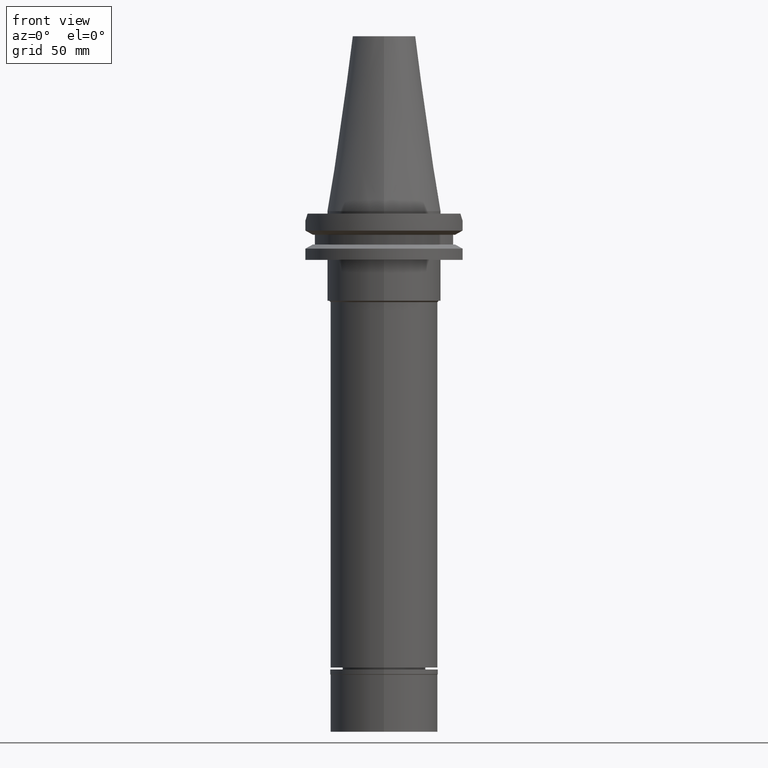
[diagram: clean part render]
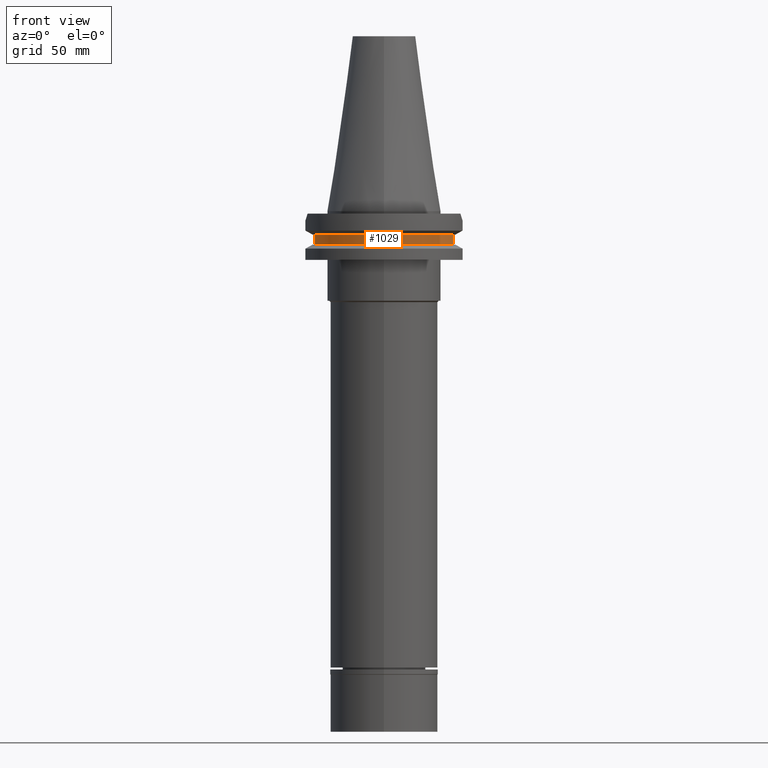
[diagram: same view with one face highlighted and labeled with its STEP entity id]
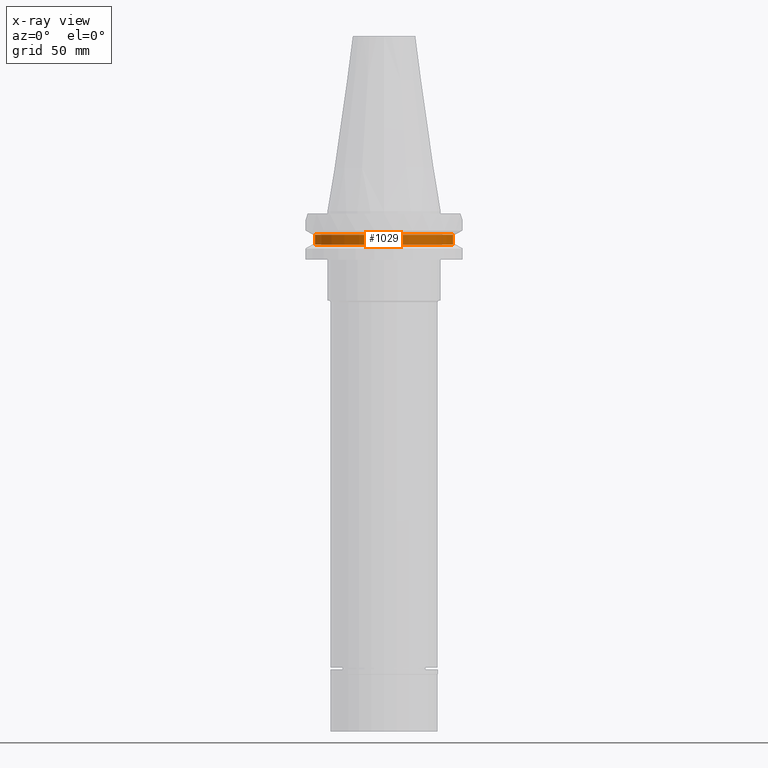
[diagram: x-ray of the same camera — body ghosted, the highlighted face saturated]
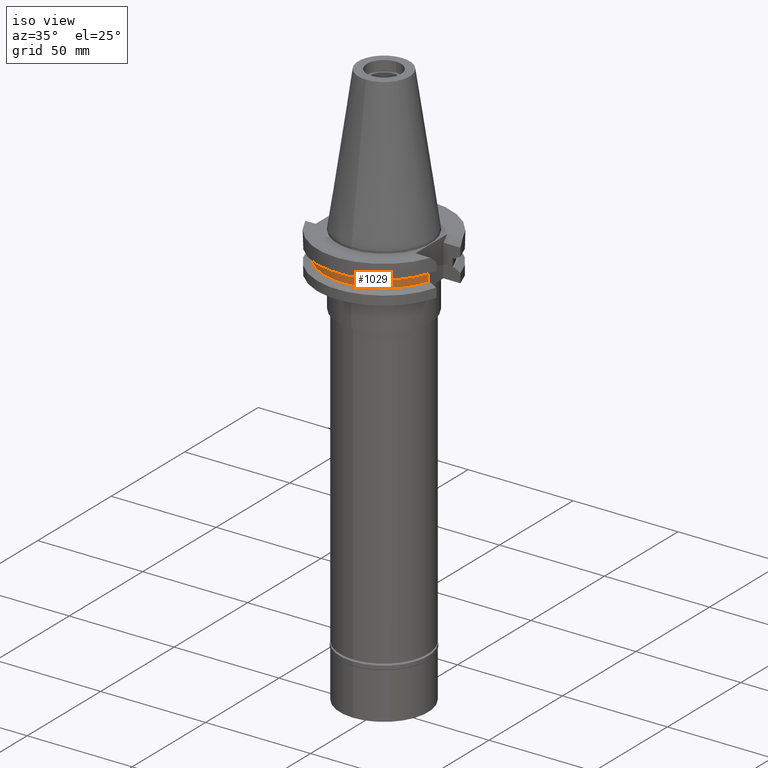
[diagram: same view with one face highlighted and labeled with its STEP entity id]
A machine part, front view. The second image highlights one B-rep face of the part: STEP entity #1029.
The next image is the same camera in x-ray: the body ghosted, the highlighted face saturated — about 0% of this face is hidden behind the body in this view.
A second angle (iso view) of the same face is appended — the face is thin or edge-on in the first view.
In plain terms, the highlighted cylindrical surface (partial cylindrical patch) has radius 28.18 mm, axis along (0, 0, -1).
Its self-contained STEP definition (entity closure, byte-faithful):
#140 = EDGE_LOOP ( 'NONE', ( #1400, #2337, #1077, #281 ) ) ;
#215 = DIRECTION ( 'NONE',  ( -0.9568350128907829877, -0.2906316536550950236, 0.0000000000000000000 ) ) ;
#281 = ORIENTED_EDGE ( 'NONE', *, *, #3252, .T. ) ;
#292 = AXIS2_PLACEMENT_3D ( 'NONE', #3032, #3016, #215 ) ;
#296 = CIRCLE ( 'NONE', #668, 28.17999999999999972 ) ;
#388 = DIRECTION ( 'NONE',  ( 0.0000000000000000000, 0.0000000000000000000, -1.000000000000000000 ) ) ;
#391 = EDGE_CURVE ( 'NONE', #1769, #1893, #2050, .T. ) ;
#563 = VECTOR ( 'NONE', #2051, 1000.000000000000000 ) ;
#654 = CARTESIAN_POINT ( 'NONE',  ( -26.96361066326000255, -8.189999999999999503, -13.04749999999999943 ) ) ;
#668 = AXIS2_PLACEMENT_3D ( 'NONE', #673, #937, #1630 ) ;
#673 = CARTESIAN_POINT ( 'NONE',  ( 0.0000000000000000000, 2.222091000882999701E-14, -9.207499999999999574 ) ) ;
#880 = CYLINDRICAL_SURFACE ( 'NONE', #2127, 28.17999999999999972 ) ;
#937 = DIRECTION ( 'NONE',  ( 0.0000000000000000000, 0.0000000000000000000, -1.000000000000000000 ) ) ;
#1029 = ADVANCED_FACE ( 'NONE', ( #2394 ), #880, .T. ) ;
#1041 = CARTESIAN_POINT ( 'NONE',  ( -26.96361066326000255, -8.189999999999999503, -13.04749999999999943 ) ) ;
#1067 = LINE ( 'NONE', #1041, #563 ) ;
#1074 = VERTEX_POINT ( 'NONE', #654 ) ;
#1077 = ORIENTED_EDGE ( 'NONE', *, *, #2856, .F. ) ;
#1378 = EDGE_CURVE ( 'NONE', #1769, #1563, #296, .T. ) ;
#1381 = DIRECTION ( 'NONE',  ( 0.0000000000000000000, -1.000000000000000000, 0.0000000000000000000 ) ) ;
#1400 = ORIENTED_EDGE ( 'NONE', *, *, #391, .F. ) ;
#1467 = CARTESIAN_POINT ( 'NONE',  ( -26.96361066326000255, -8.189999999999999503, -9.207499999999999574 ) ) ;
#1563 = VERTEX_POINT ( 'NONE', #1467 ) ;
#1630 = DIRECTION ( 'NONE',  ( 0.0000000000000000000, -1.000000000000000000, 0.0000000000000000000 ) ) ;
#1769 = VERTEX_POINT ( 'NONE', #1783 ) ;
#1783 = CARTESIAN_POINT ( 'NONE',  ( 26.96361066326000255, -8.189999999999999503, -9.207499999999999574 ) ) ;
#1893 = VERTEX_POINT ( 'NONE', #3140 ) ;
#2050 = LINE ( 'NONE', #2829, #2899 ) ;
#2051 = DIRECTION ( 'NONE',  ( 0.0000000000000000000, 0.0000000000000000000, 1.000000000000000000 ) ) ;
#2127 = AXIS2_PLACEMENT_3D ( 'NONE', #3163, #388, #1381 ) ;
#2195 = CIRCLE ( 'NONE', #292, 28.17999999999999616 ) ;
#2337 = ORIENTED_EDGE ( 'NONE', *, *, #1378, .T. ) ;
#2394 = FACE_OUTER_BOUND ( 'NONE', #140, .T. ) ;
#2566 = DIRECTION ( 'NONE',  ( 0.0000000000000000000, 0.0000000000000000000, -1.000000000000000000 ) ) ;
#2829 = CARTESIAN_POINT ( 'NONE',  ( 26.96361066326000255, -8.189999999999999503, -9.207499999999999574 ) ) ;
#2856 = EDGE_CURVE ( 'NONE', #1074, #1563, #1067, .T. ) ;
#2899 = VECTOR ( 'NONE', #2566, 1000.000000000000000 ) ;
#3016 = DIRECTION ( 'NONE',  ( 0.0000000000000000000, 0.0000000000000000000, 1.000000000000000000 ) ) ;
#3032 = CARTESIAN_POINT ( 'NONE',  ( 0.0000000000000000000, 2.222091000882999701E-14, -13.04749999999999943 ) ) ;
#3140 = CARTESIAN_POINT ( 'NONE',  ( 26.96361066326000255, -8.189999999999999503, -13.04749999999999943 ) ) ;
#3163 = CARTESIAN_POINT ( 'NONE',  ( 0.0000000000000000000, 2.222091000882999701E-14, 81.44750000000000512 ) ) ;
#3252 = EDGE_CURVE ( 'NONE', #1074, #1893, #2195, .T. ) ;